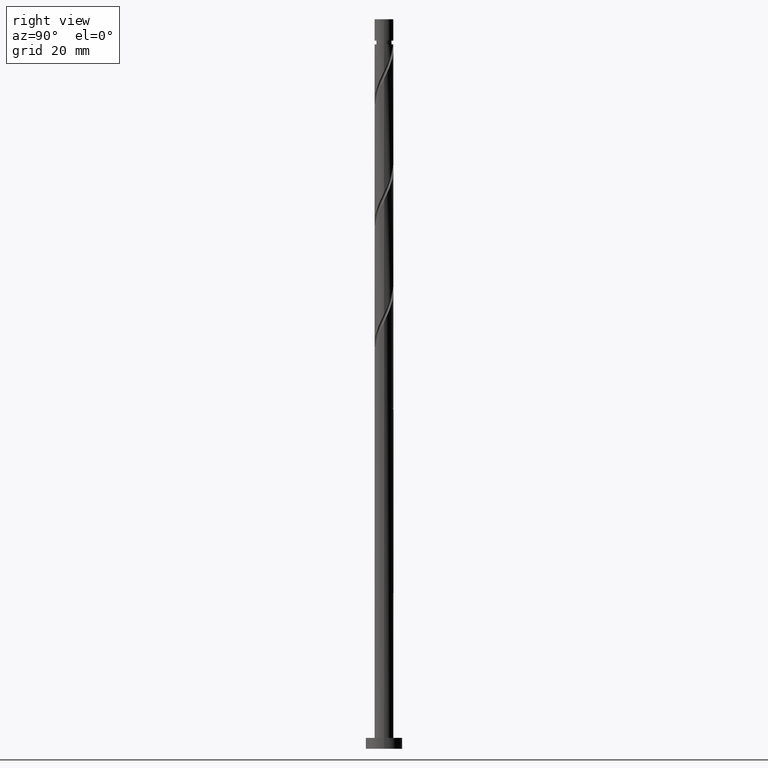
[diagram: clean part render]
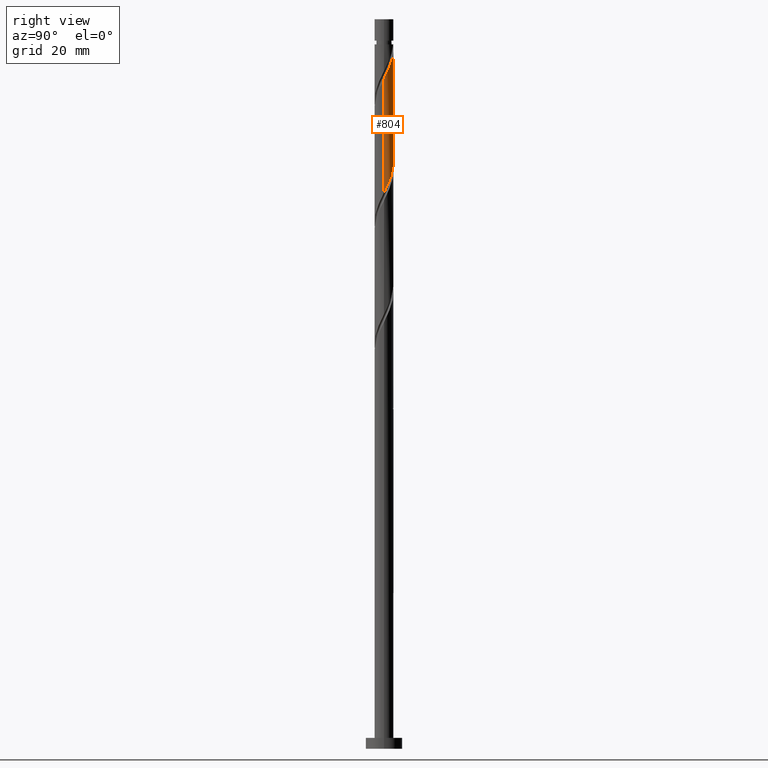
[diagram: same view with one face highlighted and labeled with its STEP entity id]
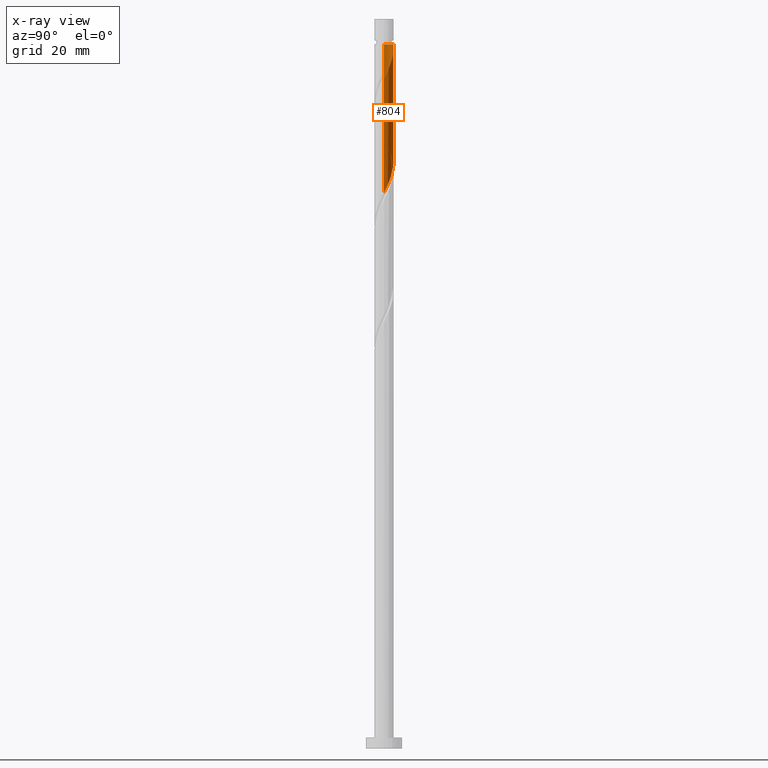
[diagram: x-ray of the same camera — body ghosted, the highlighted face saturated]
A machine part, right view. The second image highlights one B-rep face of the part: STEP entity #804.
The next image is the same camera in x-ray: the body ghosted, the highlighted face saturated — about 0% of this face is hidden behind the body in this view.
In plain terms, the highlighted cylindrical surface (edge-blend (fillet) strip) has radius 2.6 mm, axis along (-0, -0, -1).
Its self-contained STEP definition (entity closure, byte-faithful):
#68 = EDGE_CURVE ( 'NONE', #239, #1587, #484, .T. ) ;
#80 = CARTESIAN_POINT ( 'NONE',  ( -1.947935995195027248, 1.722075886429967673, 165.3057578972764077 ) ) ;
#88 = CARTESIAN_POINT ( 'NONE',  ( -1.721220403711494207, 1.978526525337782394, 164.6113134528319506 ) ) ;
#96 = DIRECTION ( 'NONE',  ( -0.000000000000000000, -0.000000000000000000, -1.000000000000000000 ) ) ;
#99 = CARTESIAN_POINT ( 'NONE',  ( 2.599999999999999645, 0.07992907430995851992, 152.6435993516257952 ) ) ;
#115 = CARTESIAN_POINT ( 'NONE',  ( -2.327267722236857406, 1.159234639335140704, 166.6946467861653502 ) ) ;
#119 = CARTESIAN_POINT ( 'NONE',  ( 0.1597072145073082372, 2.595090288532238887, 191.6946467861653218 ) ) ;
#121 = CARTESIAN_POINT ( 'NONE',  ( 2.600000000000003197, -2.243067666542993301E-16, 183.6866356865108116 ) ) ;
#128 = ORIENTED_EDGE ( 'NONE', *, *, #1376, .F. ) ;
#189 = CYLINDRICAL_SURFACE ( 'NONE', #1108, 2.600000000000000089 ) ;
#235 = CARTESIAN_POINT ( 'NONE',  ( -1.150490894682695275, 2.356594490121320273, 163.2224245639431501 ) ) ;
#239 = VERTEX_POINT ( 'NONE', #285 ) ;
#247 = CARTESIAN_POINT ( 'NONE',  ( -2.547999999999999599, 0.5173934672954437763, 168.0835356750541791 ) ) ;
#251 = CARTESIAN_POINT ( 'NONE',  ( 2.600000000000003197, -2.243067666542993301E-16, 183.6866356865108401 ) ) ;
#257 = CARTESIAN_POINT ( 'NONE',  ( -1.435855649197094852, 2.167560507729551667, 163.9168690083875504 ) ) ;
#261 = CARTESIAN_POINT ( 'NONE',  ( 1.150490894682697718, 2.356594490121322938, 189.6113134528320074 ) ) ;
#279 = CARTESIAN_POINT ( 'NONE',  ( -2.600000000000000089, 0.000000000000000000, 200.0000000000000000 ) ) ;
#285 = CARTESIAN_POINT ( 'NONE',  ( -2.600000000000000089, -1.016857342166162551E-15, 169.1471023302643175 ) ) ;
#333 = DIRECTION ( 'NONE',  ( -0.000000000000000000, -0.000000000000000000, -1.000000000000000000 ) ) ;
#368 = CARTESIAN_POINT ( 'NONE',  ( 1.722075886429968561, 1.947935995195026804, 156.9724245639431501 ) ) ;
#380 = CARTESIAN_POINT ( 'NONE',  ( 2.600000000000000533, 3.087956487607539127E-15, 152.4804356635976603 ) ) ;
#414 = CARTESIAN_POINT ( 'NONE',  ( -0.5173934672954700886, 2.548000000000000931, 193.0835356750543212 ) ) ;
#427 = CARTESIAN_POINT ( 'NONE',  ( 1.435855649197097295, 2.167560507729553887, 188.9168690083874651 ) ) ;
#466 = FACE_OUTER_BOUND ( 'NONE', #1705, .T. ) ;
#484 =( BOUNDED_CURVE ( )  B_SPLINE_CURVE ( 2, ( #929, #1456, #247, #1439, #115, #1702, #80, #88, #257, #235, #503, #798, #1565, #1201, #785, #1450, #808, #1050, #368, #628, #660, #919, #1319, #1577, #636, #99, #1328 ),
 .UNSPECIFIED., .F., .T. ) 
 B_SPLINE_CURVE_WITH_KNOTS ( ( 3, 2, 2, 2, 2, 2, 2, 2, 2, 2, 2, 2, 2, 3 ),
 ( 0.4295317669814462391, 0.4375000000000000000, 0.4479166666666666852, 0.4583333333333333148, 0.4687500000000000000, 0.4791666666666666852, 0.4895833333333333148, 0.5000000000000000000, 0.5104166666666666297, 0.5208333333333333703, 0.5312500000000000000, 0.5416666666666666297, 0.5520833333333333703, 0.5545317669814460171 ),
 .UNSPECIFIED. ) 
 CURVE ( )  GEOMETRIC_REPRESENTATION_ITEM ( )  RATIONAL_B_SPLINE_CURVE ( ( 0.9062941362546473867, 0.9031415850403514689, 0.9090909090909268242, 0.9013135103398453030, 0.9090909090909268242, 0.9013135103398453030, 0.9090909090909268242, 0.9013135103398453030, 0.9090909090909268242, 0.9013135103398453030, 0.9090909090909268242, 0.9013135103398453030, 0.9090909090909268242, 0.9013135103398453030, 0.9090909090909268242, 0.9013135103398453030, 0.9090909090909268242, 0.9013135103398453030, 0.9090909090909268242, 0.9013135103398453030, 0.9090909090909268242, 0.9013135103398453030, 0.9090909090909268242, 0.9013135103398453030, 0.9090909090909268242, 0.9072628343904207693, 0.9062941362546473867 ) ) 
 REPRESENTATION_ITEM ( '' )  );
#503 = CARTESIAN_POINT ( 'NONE',  ( -0.8259241135700324810, 2.465329462490471801, 162.5279801194986362 ) ) ;
#540 = ORIENTED_EDGE ( 'NONE', *, *, #68, .F. ) ;
#582 = ORIENTED_EDGE ( 'NONE', *, *, #1331, .T. ) ;
#628 = CARTESIAN_POINT ( 'NONE',  ( 1.978526525337783282, 1.721220403711493319, 156.2779801194986362 ) ) ;
#636 = CARTESIAN_POINT ( 'NONE',  ( 2.595090288532234890, 0.1597072145073042959, 152.8057578972764645 ) ) ;
#660 = CARTESIAN_POINT ( 'NONE',  ( 2.167560507729551667, 1.435855649197094186, 155.5835356750542076 ) ) ;
#663 = CARTESIAN_POINT ( 'NONE',  ( -0.1819429034427708647, 2.616116142204851780, 192.3890912306097789 ) ) ;
#671 = LINE ( 'NONE', #279, #860 ) ;
#705 =( BOUNDED_CURVE ( )  B_SPLINE_CURVE ( 2, ( #251, #839, #1211, #949, #1074, #1226, #940, #1727, #427, #261, #812, #1336, #119, #663, #414 ),
 .UNSPECIFIED., .F., .T. ) 
 B_SPLINE_CURVE_WITH_KNOTS ( ( 3, 2, 2, 2, 2, 2, 2, 3 ),
 ( 0.6795317669814463502, 0.6875000000000000000, 0.6979166666666668517, 0.7083333333333334814, 0.7187500000000002220, 0.7291666666666670737, 0.7395833333333335924, 0.7500000000000004441 ),
 .UNSPECIFIED. ) 
 CURVE ( )  GEOMETRIC_REPRESENTATION_ITEM ( )  RATIONAL_B_SPLINE_CURVE ( ( 0.9062941362546523827, 0.9031415850403566870, 0.9090909090909320422, 0.9013135103398504100, 0.9090909090909320422, 0.9013135103398504100, 0.9090909090909320422, 0.9013135103398504100, 0.9090909090909320422, 0.9013135103398504100, 0.9090909090909320422, 0.9013135103398504100, 0.9090909090909320422, 0.9013135103398500769, 0.9090909090909323753 ) ) 
 REPRESENTATION_ITEM ( '' )  );
#785 = CARTESIAN_POINT ( 'NONE',  ( 0.5173934672954443315, 2.547999999999999599, 159.7502023417209216 ) ) ;
#795 = CIRCLE ( 'NONE', #1395, 2.599999999999988542 ) ;
#798 = CARTESIAN_POINT ( 'NONE',  ( -0.5013573324573700196, 2.574064434859621997, 161.8335356750541791 ) ) ;
#804 = ADVANCED_FACE ( 'NONE', ( #466 ), #189, .T. ) ;
#805 = CARTESIAN_POINT ( 'NONE',  ( -2.599999999999988542, 0.000000000000000000, 193.0835356750542076 ) ) ;
#808 = CARTESIAN_POINT ( 'NONE',  ( 1.159234639335142480, 2.327267722236856518, 158.3613134528320074 ) ) ;
#810 = VERTEX_POINT ( 'NONE', #1383 ) ;
#812 = CARTESIAN_POINT ( 'NONE',  ( 0.8259241135700351455, 2.465329462490473578, 190.3057578972764645 ) ) ;
#839 = CARTESIAN_POINT ( 'NONE',  ( 2.600000000000002753, 0.2613098319673980985, 184.2200620557001400 ) ) ;
#860 = VECTOR ( 'NONE', #1743, 1000.000000000000000 ) ;
#900 = ORIENTED_EDGE ( 'NONE', *, *, #1562, .T. ) ;
#919 = CARTESIAN_POINT ( 'NONE',  ( 2.356594490121322050, 1.150490894682692833, 154.8890912306097221 ) ) ;
#929 = CARTESIAN_POINT ( 'NONE',  ( -2.600000000000000089, -1.016857342166162551E-15, 169.1471023302643175 ) ) ;
#940 = CARTESIAN_POINT ( 'NONE',  ( 1.947935995195031689, 1.722075886429967673, 187.5279801194986646 ) ) ;
#949 = CARTESIAN_POINT ( 'NONE',  ( 2.479883857795156743, 0.8528440311481283453, 185.4446467861652934 ) ) ;
#957 = EDGE_CURVE ( 'NONE', #1639, #239, #671, .T. ) ;
#1026 = CARTESIAN_POINT ( 'NONE',  ( 2.600000000000000089, 3.184081677783118191E-16, 200.0000000000000000 ) ) ;
#1050 = CARTESIAN_POINT ( 'NONE',  ( 1.465625247522153396, 2.174651586678561177, 157.6668690083875219 ) ) ;
#1074 = CARTESIAN_POINT ( 'NONE',  ( 2.327267722236860514, 1.159234639335140704, 186.1390912306098073 ) ) ;
#1108 = AXIS2_PLACEMENT_3D ( 'NONE', #1259, #333, #1668 ) ;
#1201 = CARTESIAN_POINT ( 'NONE',  ( 0.1819429034427590131, 2.616116142204848227, 160.4446467861653218 ) ) ;
#1211 = CARTESIAN_POINT ( 'NONE',  ( 2.548000000000004039, 0.5173934672954436653, 184.7502023417208363 ) ) ;
#1214 = VECTOR ( 'NONE', #1545, 1000.000000000000000 ) ;
#1226 = CARTESIAN_POINT ( 'NONE',  ( 2.174651586678565174, 1.465625247522152730, 186.8335356750542076 ) ) ;
#1259 = CARTESIAN_POINT ( 'NONE',  ( 0.000000000000000000, 0.000000000000000000, 200.0000000000000000 ) ) ;
#1319 = CARTESIAN_POINT ( 'NONE',  ( 2.465329462490473134, 0.8259241135700309266, 154.1946467861653502 ) ) ;
#1328 = CARTESIAN_POINT ( 'NONE',  ( 2.600000000000000533, 3.087956487607539127E-15, 152.4804356635976603 ) ) ;
#1331 = EDGE_CURVE ( 'NONE', #1656, #1587, #1680, .T. ) ;
#1336 = CARTESIAN_POINT ( 'NONE',  ( 0.5013573324573725731, 2.574064434859625550, 191.0002023417208932 ) ) ;
#1342 = ORIENTED_EDGE ( 'NONE', *, *, #957, .F. ) ;
#1376 = EDGE_CURVE ( 'NONE', #1656, #810, #705, .T. ) ;
#1383 = CARTESIAN_POINT ( 'NONE',  ( -0.5173934672954700886, 2.548000000000000931, 193.0835356750543212 ) ) ;
#1395 = AXIS2_PLACEMENT_3D ( 'NONE', #1433, #96, #1716 ) ;
#1433 = CARTESIAN_POINT ( 'NONE',  ( 0.000000000000000000, 0.000000000000000000, 193.0835356750542076 ) ) ;
#1439 = CARTESIAN_POINT ( 'NONE',  ( -2.479883857795150970, 0.8528440311481283453, 167.3890912306097789 ) ) ;
#1450 = CARTESIAN_POINT ( 'NONE',  ( 0.8528440311481305658, 2.479883857795150082, 159.0557578972764077 ) ) ;
#1456 = CARTESIAN_POINT ( 'NONE',  ( -2.600000000000000533, 0.2613098319673956005, 168.6136759610749891 ) ) ;
#1545 = DIRECTION ( 'NONE',  ( -0.000000000000000000, -0.000000000000000000, -1.000000000000000000 ) ) ;
#1562 = EDGE_CURVE ( 'NONE', #1639, #810, #795, .T. ) ;
#1565 = CARTESIAN_POINT ( 'NONE',  ( -0.1597072145073054894, 2.595090288532234890, 161.1390912306098073 ) ) ;
#1577 = CARTESIAN_POINT ( 'NONE',  ( 2.574064434859622441, 0.5013573324573682433, 153.5002023417208932 ) ) ;
#1587 = VERTEX_POINT ( 'NONE', #380 ) ;
#1639 = VERTEX_POINT ( 'NONE', #805 ) ;
#1656 = VERTEX_POINT ( 'NONE', #121 ) ;
#1668 = DIRECTION ( 'NONE',  ( -1.000000000000000000, 0.000000000000000000, 0.000000000000000000 ) ) ;
#1680 = LINE ( 'NONE', #1026, #1214 ) ;
#1702 = CARTESIAN_POINT ( 'NONE',  ( -2.174651586678561177, 1.465625247522152286, 166.0002023417208648 ) ) ;
#1705 = EDGE_LOOP ( 'NONE', ( #128, #582, #540, #1342, #900 ) ) ;
#1716 = DIRECTION ( 'NONE',  ( -1.000000000000000000, 0.000000000000000000, 0.000000000000000000 ) ) ;
#1727 = CARTESIAN_POINT ( 'NONE',  ( 1.721220403711498426, 1.978526525337783504, 188.2224245639430649 ) ) ;
#1743 = DIRECTION ( 'NONE',  ( -0.000000000000000000, -0.000000000000000000, -1.000000000000000000 ) ) ;